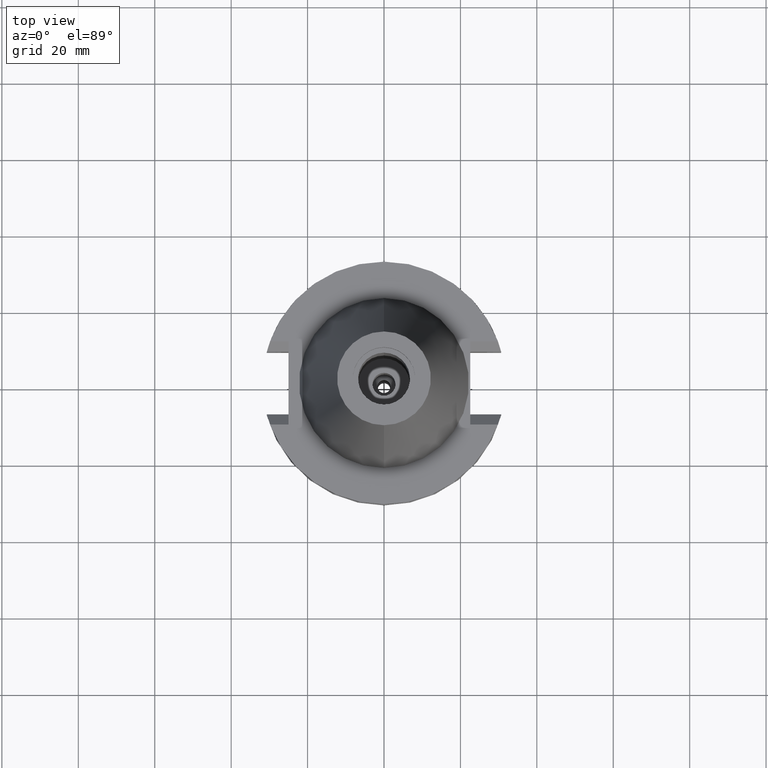
[diagram: clean part render]
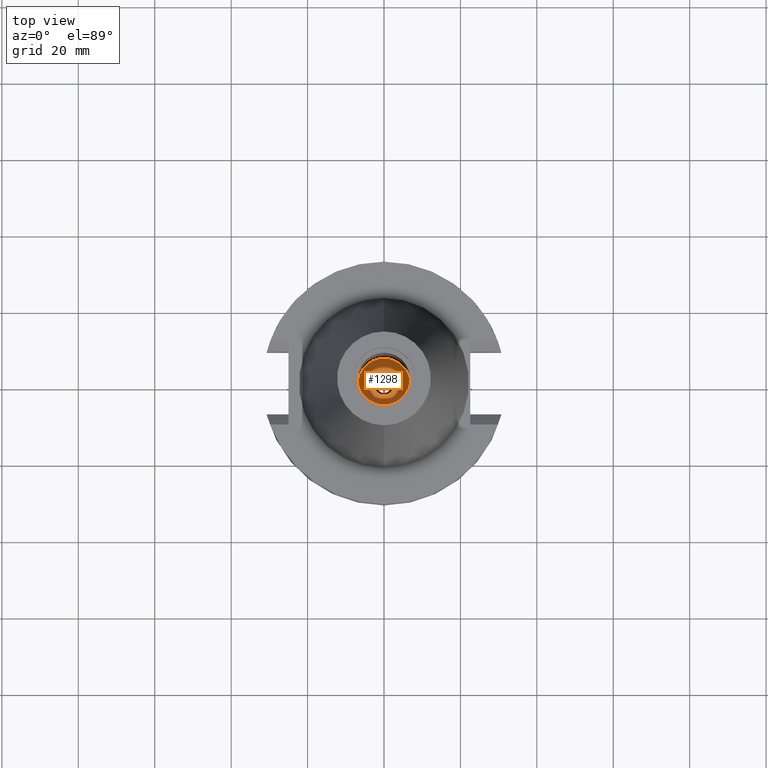
[diagram: same view with one face highlighted and labeled with its STEP entity id]
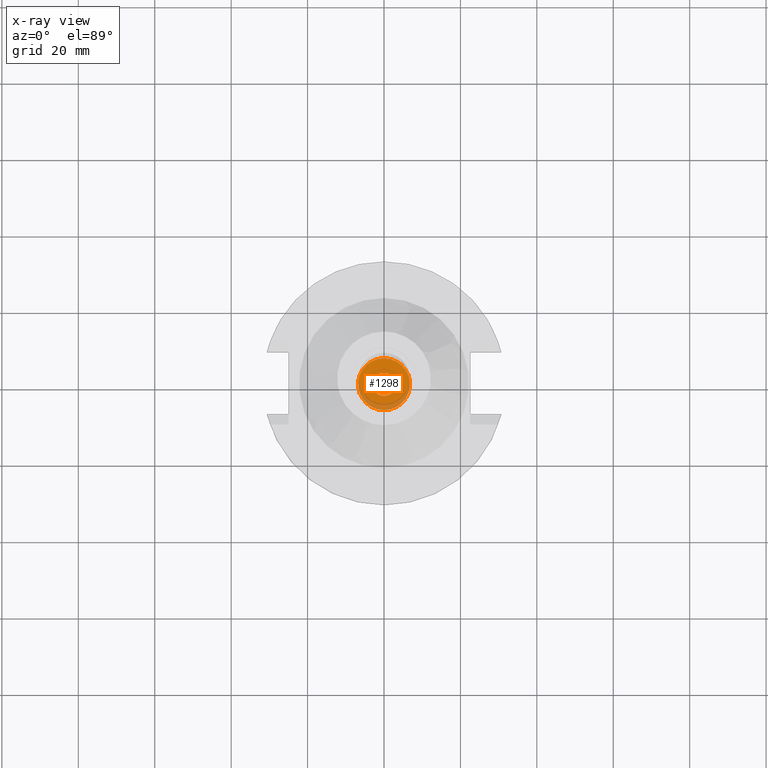
[diagram: x-ray of the same camera — body ghosted, the highlighted face saturated]
A machine part, top view. The second image highlights one B-rep face of the part: STEP entity #1298.
The next image is the same camera in x-ray: the body ghosted, the highlighted face saturated — about 17% of this face is hidden behind the body in this view.
In plain terms, the highlighted planar face has unit normal (0, 0, -1).
Its self-contained STEP definition (entity closure, byte-faithful):
#98 = EDGE_CURVE ( 'NONE', #202, #2983, #265, .T. ) ;
#144 = EDGE_LOOP ( 'NONE', ( #3055, #2221 ) ) ;
#202 = VERTEX_POINT ( 'NONE', #3138 ) ;
#265 = CIRCLE ( 'NONE', #2687, 6.799999999999999822 ) ;
#267 = CARTESIAN_POINT ( 'NONE',  ( 0.0000000000000000000, 2.162205772404999825E-14, -21.75000000000000000 ) ) ;
#302 = DIRECTION ( 'NONE',  ( 0.0000000000000000000, 0.0000000000000000000, 1.000000000000000000 ) ) ;
#375 = AXIS2_PLACEMENT_3D ( 'NONE', #267, #302, #1239 ) ;
#485 = CARTESIAN_POINT ( 'NONE',  ( 0.0000000000000000000, 2.162205772404999825E-14, -21.75000000000000000 ) ) ;
#533 = AXIS2_PLACEMENT_3D ( 'NONE', #485, #1462, #2392 ) ;
#593 = DIRECTION ( 'NONE',  ( 0.0000000000000000000, 0.0000000000000000000, -1.000000000000000000 ) ) ;
#652 = EDGE_CURVE ( 'NONE', #3044, #2038, #830, .T. ) ;
#673 = FACE_BOUND ( 'NONE', #144, .T. ) ;
#694 = DIRECTION ( 'NONE',  ( 0.0000000000000000000, -1.000000000000000000, 0.0000000000000000000 ) ) ;
#830 = CIRCLE ( 'NONE', #375, 3.000000000000000000 ) ;
#1239 = DIRECTION ( 'NONE',  ( 0.0000000000000000000, -1.000000000000000000, 0.0000000000000000000 ) ) ;
#1298 = ADVANCED_FACE ( 'NONE', ( #1618, #673 ), #1889, .F. ) ;
#1421 = CARTESIAN_POINT ( 'NONE',  ( 0.0000000000000000000, 6.799999999999999822, -21.75000000000000000 ) ) ;
#1438 = DIRECTION ( 'NONE',  ( 0.0000000000000000000, 1.000000000000000000, 0.0000000000000000000 ) ) ;
#1462 = DIRECTION ( 'NONE',  ( 0.0000000000000000000, 0.0000000000000000000, -1.000000000000000000 ) ) ;
#1618 = FACE_OUTER_BOUND ( 'NONE', #2200, .T. ) ;
#1635 = CARTESIAN_POINT ( 'NONE',  ( 0.0000000000000000000, 2.162205772404999825E-14, -21.75000000000000000 ) ) ;
#1646 = CARTESIAN_POINT ( 'NONE',  ( 0.0000000000000000000, 0.0000000000000000000, -21.75000000000000000 ) ) ;
#1889 = PLANE ( 'NONE',  #2101 ) ;
#1984 = CARTESIAN_POINT ( 'NONE',  ( 0.0000000000000000000, 2.162205772404999825E-14, -21.75000000000000000 ) ) ;
#2038 = VERTEX_POINT ( 'NONE', #2275 ) ;
#2065 = CIRCLE ( 'NONE', #3067, 3.000000000000000000 ) ;
#2101 = AXIS2_PLACEMENT_3D ( 'NONE', #1646, #3159, #694 ) ;
#2132 = DIRECTION ( 'NONE',  ( 0.0000000000000000000, 0.0000000000000000000, 1.000000000000000000 ) ) ;
#2200 = EDGE_LOOP ( 'NONE', ( #2399, #2300 ) ) ;
#2221 = ORIENTED_EDGE ( 'NONE', *, *, #652, .F. ) ;
#2275 = CARTESIAN_POINT ( 'NONE',  ( 0.0000000000000000000, 3.000000000000000000, -21.75000000000000000 ) ) ;
#2300 = ORIENTED_EDGE ( 'NONE', *, *, #98, .F. ) ;
#2392 = DIRECTION ( 'NONE',  ( 0.0000000000000000000, 1.000000000000000000, 0.0000000000000000000 ) ) ;
#2399 = ORIENTED_EDGE ( 'NONE', *, *, #2588, .F. ) ;
#2423 = CARTESIAN_POINT ( 'NONE',  ( 0.0000000000000000000, -3.000000000000000000, -21.75000000000000000 ) ) ;
#2588 = EDGE_CURVE ( 'NONE', #2983, #202, #2972, .T. ) ;
#2687 = AXIS2_PLACEMENT_3D ( 'NONE', #1984, #593, #3056 ) ;
#2972 = CIRCLE ( 'NONE', #533, 6.799999999999999822 ) ;
#2983 = VERTEX_POINT ( 'NONE', #1421 ) ;
#3044 = VERTEX_POINT ( 'NONE', #2423 ) ;
#3055 = ORIENTED_EDGE ( 'NONE', *, *, #3175, .F. ) ;
#3056 = DIRECTION ( 'NONE',  ( 0.0000000000000000000, -1.000000000000000000, 0.0000000000000000000 ) ) ;
#3067 = AXIS2_PLACEMENT_3D ( 'NONE', #1635, #2132, #1438 ) ;
#3138 = CARTESIAN_POINT ( 'NONE',  ( 0.0000000000000000000, -6.799999999999999822, -21.75000000000000000 ) ) ;
#3159 = DIRECTION ( 'NONE',  ( 0.0000000000000000000, 0.0000000000000000000, -1.000000000000000000 ) ) ;
#3175 = EDGE_CURVE ( 'NONE', #2038, #3044, #2065, .T. ) ;